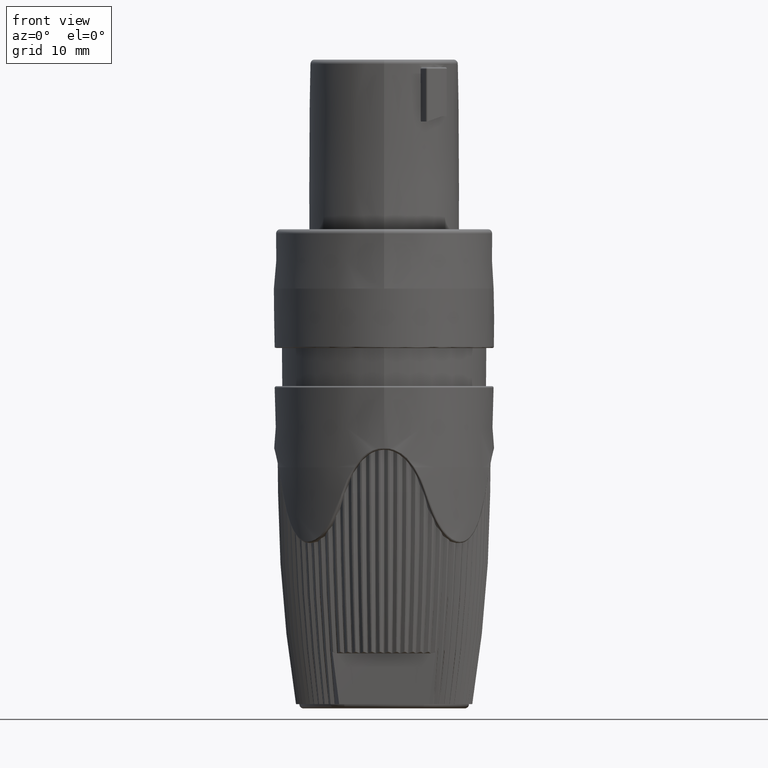
[diagram: clean part render]
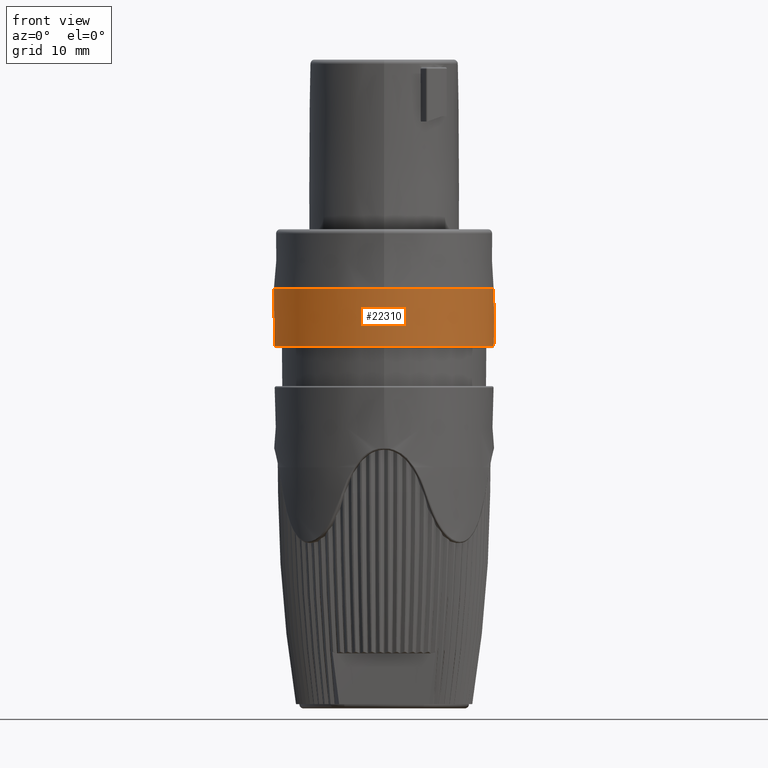
[diagram: same view with one face highlighted and labeled with its STEP entity id]
A machine part, front view. The second image highlights one B-rep face of the part: STEP entity #22310.
In plain terms, the highlighted conical surface has half-angle 0.5 deg.
Its self-contained STEP definition (entity closure, byte-faithful):
#2877=DIRECTION('',(5.890180959891E-5,8.863019207377E-3,9.999607209391E-1));
#2878=VECTOR('',#2877,6.802008814904E0);
#2879=CARTESIAN_POINT('',(-2.184397324232E0,1.275494517034E1,
-3.017416383860E-1));
#2880=LINE('',#2879,#2878);
#2881=CARTESIAN_POINT('',(-2.184397324232E0,1.275494517034E1,
-3.017416383860E-1));
#2932=CARTESIAN_POINT('',(2.184397324149E0,1.275494517034E1,
-3.017416400057E-1));
#2933=CARTESIAN_POINT('',(2.361120586479E0,1.272467532525E1,
-3.022361742442E-1));
#2934=CARTESIAN_POINT('',(2.713297724118E0,1.265679076673E1,
-3.032333979465E-1));
#2935=CARTESIAN_POINT('',(3.236835366282E0,1.253311131966E1,
-3.047541689310E-1));
#2936=CARTESIAN_POINT('',(3.754764084303E0,1.238779125192E1,
-3.063000281980E-1));
#2937=CARTESIAN_POINT('',(4.266178625537E0,1.222108752161E1,
-3.078705846440E-1));
#2938=CARTESIAN_POINT('',(4.770208128681E0,1.203328761030E1,
-3.094650107257E-1));
#2939=CARTESIAN_POINT('',(5.265994987131E0,1.182471255214E1,
-3.110819326993E-1));
#2940=CARTESIAN_POINT('',(5.752687923352E0,1.159572086238E1,
-3.127193629832E-1));
#2941=CARTESIAN_POINT('',(6.229448754306E0,1.134670680403E1,
-3.143746931353E-1));
#2942=CARTESIAN_POINT('',(6.695452524370E0,1.107810115380E1,
-3.160446871893E-1));
#2943=CARTESIAN_POINT('',(7.149895664790E0,1.079036714513E1,
-3.177255305542E-1));
#2944=CARTESIAN_POINT('',(7.591996905365E0,1.048399901137E1,
-3.194128857157E-1));
#2945=CARTESIAN_POINT('',(8.020993424832E0,1.015952447223E1,
-3.211019587544E-1));
#2946=CARTESIAN_POINT('',(8.436143935300E0,9.817503253689E0,
-3.227876189486E-1));
#2947=CARTESIAN_POINT('',(8.836731592496E0,9.458524899125E0,
-3.244645422305E-1));
#2948=CARTESIAN_POINT('',(9.222064495123E0,9.083208251675E0,
-3.261273600140E-1));
#2949=CARTESIAN_POINT('',(9.591476715957E0,8.692200624804E0,
-3.277708142464E-1));
#2950=CARTESIAN_POINT('',(9.944329664184E0,8.286176557725E0,
-3.293899073556E-1));
#2951=CARTESIAN_POINT('',(1.028001326954E1,7.865836589265E0,
-3.309800346863E-1));
#2952=CARTESIAN_POINT('',(1.059794700517E1,7.431906110924E0,
-3.325370911960E-1));
#2953=CARTESIAN_POINT('',(1.089758097490E1,6.985134029702E0,
-3.340575482263E-1));
#2954=CARTESIAN_POINT('',(1.117839687537E1,6.526291449677E0,
-3.355384976396E-1));
#2955=CARTESIAN_POINT('',(1.143990886475E1,6.056170378815E0,
-3.369776646176E-1));
#2956=CARTESIAN_POINT('',(1.168166439687E1,5.575582382120E0,
-3.383733931254E-1));
#2957=CARTESIAN_POINT('',(1.190324500324E1,5.085357203617E0,
-3.397246092258E-1));
#2958=CARTESIAN_POINT('',(1.210426704590E1,4.586341291316E0,
-3.410307683817E-1));
#2959=CARTESIAN_POINT('',(1.228438237481E1,4.079396358536E0,
-3.422917922549E-1));
#2960=CARTESIAN_POINT('',(1.244327893572E1,3.565397902901E0,
-3.435080005091E-1));
#2961=CARTESIAN_POINT('',(1.258068131470E1,3.045233709964E0,
-3.446800418656E-1));
#2962=CARTESIAN_POINT('',(1.269635122468E1,2.519802328112E0,
-3.458088276999E-1));
#2963=CARTESIAN_POINT('',(1.279008792956E1,1.990011525807E0,
-3.468954703980E-1));
#2964=CARTESIAN_POINT('',(1.286172860757E1,1.456776712807E0,
-3.479412278412E-1));
#2965=CARTESIAN_POINT('',(1.291114864458E1,9.210193718368E-1,
-3.489474545588E-1));
#2966=CARTESIAN_POINT('',(1.293826186559E1,3.836654707419E-1,
-3.499155596890E-1));
#2967=CARTESIAN_POINT('',(1.294302070120E1,-1.543561392650E-1,
-3.508469714499E-1));
#2968=CARTESIAN_POINT('',(1.292541628757E1,-6.921153328300E-1,
-3.517431075750E-1));
#2969=CARTESIAN_POINT('',(1.288547849894E1,-1.228682330332E0,
-3.526053510638E-1));
#2970=CARTESIAN_POINT('',(1.282327591128E1,-1.763129318859E0,
-3.534350305344E-1));
#2971=CARTESIAN_POINT('',(1.273891569660E1,-2.294532075118E0,
-3.542334044795E-1));
#2972=CARTESIAN_POINT('',(1.263254344672E1,-2.821971586278E0,
-3.550016487820E-1));
#2973=CARTESIAN_POINT('',(1.250434292761E1,-3.344535659992E0,
-3.557408468994E-1));
#2974=CARTESIAN_POINT('',(1.235453576254E1,-3.861320529338E0,
-3.564519822250E-1));
#2975=CARTESIAN_POINT('',(1.218338104643E1,-4.371432438334E0,
-3.571359321988E-1));
#2976=CARTESIAN_POINT('',(1.199117489226E1,-4.873989208961E0,
-3.577934638466E-1));
#2977=CARTESIAN_POINT('',(1.177824990433E1,-5.368121799585E0,
-3.584252305181E-1));
#2978=CARTESIAN_POINT('',(1.154497459222E1,-5.852975816583E0,
-3.590317696206E-1));
#2979=CARTESIAN_POINT('',(1.129175273069E1,-6.327712985633E0,
-3.596135012948E-1));
#2980=CARTESIAN_POINT('',(1.101902264003E1,-6.791512631111E0,
-3.601707280939E-1));
#2981=CARTESIAN_POINT('',(1.072725640102E1,-7.243573119196E0,
-3.607036357067E-1));
#2982=CARTESIAN_POINT('',(1.041695902019E1,-7.683113245185E0,
-3.612122948713E-1));
#2983=CARTESIAN_POINT('',(1.008866753261E1,-8.109373590684E0,
-3.616966647624E-1));
#2984=CARTESIAN_POINT('',(9.742950054944E0,-8.521617831255E0,
-3.621565981488E-1));
#2985=CARTESIAN_POINT('',(9.380404788759E0,-8.919133999239E0,
-3.625918487093E-1));
#2986=CARTESIAN_POINT('',(9.001658975948E0,-9.301235702218E0,
-3.630020809251E-1));
#2987=CARTESIAN_POINT('',(8.607367785260E0,-9.667263313872E0,
-3.633868830005E-1));
#2988=CARTESIAN_POINT('',(8.198213197603E0,-1.001658507688E1,
-3.637457831447E-1));
#2989=CARTESIAN_POINT('',(7.774902744247E0,-1.034859823945E1,
-3.640782696373E-1));
#2990=CARTESIAN_POINT('',(7.338168492249E0,-1.066272992061E1,
-3.643838145196E-1));
#2991=CARTESIAN_POINT('',(6.888765302786E0,-1.095843845005E1,
-3.646619015222E-1));
#2992=CARTESIAN_POINT('',(6.427470398033E0,-1.123521358325E1,
-3.649120561868E-1));
#2993=CARTESIAN_POINT('',(5.955081580313E0,-1.149257820010E1,
-3.651338800198E-1));
#2994=CARTESIAN_POINT('',(5.472409895170E0,-1.173009060916E1,
-3.653270853969E-1));
#2995=CARTESIAN_POINT('',(4.980314728578E0,-1.194733152674E1,
-3.654915193449E-1));
#2996=CARTESIAN_POINT('',(4.479563289562E0,-1.214395989278E1,
-3.656272345776E-1));
#2997=CARTESIAN_POINT('',(3.971074924708E0,-1.231960983716E1,
-3.657345312108E-1));
#2998=CARTESIAN_POINT('',(3.455716252973E0,-1.247398234054E1,
-3.658138718859E-1));
#2999=CARTESIAN_POINT('',(2.934378341714E0,-1.260680867652E1,
-3.658658089188E-1));
#3000=CARTESIAN_POINT('',(2.407962959374E0,-1.271785804013E1,
-3.658909520787E-1));
#3001=CARTESIAN_POINT('',(1.877379117659E0,-1.280693755546E1,
-3.658899339173E-1));
#3002=CARTESIAN_POINT('',(1.343544180484E0,-1.287389216970E1,
-3.658633814172E-1));
#3003=CARTESIAN_POINT('',(8.073807895793E-1,-1.291860522379E1,
-3.658118927964E-1));
#3004=CARTESIAN_POINT('',(2.698159276981E-1,-1.294099854626E1,
-3.657360190535E-1));
#3005=CARTESIAN_POINT('',(-2.682209525022E-1,-1.294103264844E1,
-3.656362497839E-1));
#3006=CARTESIAN_POINT('',(-8.057994479258E-1,-1.291870679381E1,
-3.655130027021E-1));
#3007=CARTESIAN_POINT('',(-1.341989863785E0,-1.287405901757E1,
-3.653666163176E-1));
#3008=CARTESIAN_POINT('',(-1.875864827210E0,-1.280716607160E1,
-3.651973452850E-1));
#3009=CARTESIAN_POINT('',(-2.406500916620E0,-1.271814330094E1,
-3.650053580232E-1));
#3010=CARTESIAN_POINT('',(-2.932980280955E0,-1.260714444967E1,
-3.647907362896E-1));
#3011=CARTESIAN_POINT('',(-3.454392252455E0,-1.247436139664E1,
-3.645534765042E-1));
#3012=CARTESIAN_POINT('',(-3.969834946763E0,-1.232002382115E1,
-3.642934927038E-1));
#3013=CARTESIAN_POINT('',(-4.478416850844E0,-1.214439879809E1,
-3.640106211087E-1));
#3014=CARTESIAN_POINT('',(-4.979258383666E0,-1.194779032680E1,
-3.637046263788E-1));
#3015=CARTESIAN_POINT('',(-5.471493436532E0,-1.173053879294E1,
-3.633752097183E-1));
#3016=CARTESIAN_POINT('',(-5.954270891194E0,-1.149302036334E1,
-3.630220190565E-1));
#3017=CARTESIAN_POINT('',(-6.426756110592E0,-1.123564631415E1,
-3.626446616130E-1));
#3018=CARTESIAN_POINT('',(-6.888132380869E0,-1.095886230804E1,
-3.622427192215E-1));
#3019=CARTESIAN_POINT('',(-7.337602362486E0,-1.066314757964E1,
-3.618157667207E-1));
#3020=CARTESIAN_POINT('',(-7.774389376870E0,-1.034901415998E1,
-3.613633939835E-1));
#3021=CARTESIAN_POINT('',(-8.197738997611E0,-1.001700577168E1,
-3.608852313529E-1));
#3022=CARTESIAN_POINT('',(-8.606919701305E0,-9.667697419471E0,
-3.603809801012E-1));
#3023=CARTESIAN_POINT('',(-9.001225601995E0,-9.301693105077E0,
-3.598504443508E-1));
#3024=CARTESIAN_POINT('',(-9.379974765446E0,-8.919627303475E0,
-3.592935714627E-1));
#3025=CARTESIAN_POINT('',(-9.742514317201E0,-8.522160825310E0,
-3.587104894528E-1));
#3026=CARTESIAN_POINT('',(-1.008822282478E1,-8.109975089626E0,
-3.581015346412E-1));
#3027=CARTESIAN_POINT('',(-1.041647864459E1,-7.683817237320E0,
-3.574673860718E-1));
#3028=CARTESIAN_POINT('',(-1.072676040853E1,-7.244366368272E0,
-3.568091012042E-1));
#3029=CARTESIAN_POINT('',(-1.101851669647E1,-6.792398462439E0,
-3.561278591982E-1));
#3030=CARTESIAN_POINT('',(-1.129124574856E1,-6.328690176248E0,
-3.554248021560E-1));
#3031=CARTESIAN_POINT('',(-1.154447521743E1,-5.854042035730E0,
-3.547010304446E-1));
#3032=CARTESIAN_POINT('',(-1.177776653217E1,-5.369273942622E0,
-3.539575700890E-1));
#3033=CARTESIAN_POINT('',(-1.199071580129E1,-4.875222746879E0,
-3.531953469828E-1));
#3034=CARTESIAN_POINT('',(-1.218295408341E1,-4.372741829551E0,
-3.524151706261E-1));
#3035=CARTESIAN_POINT('',(-1.235414828603E1,-3.862699094404E0,
-3.516177207232E-1));
#3036=CARTESIAN_POINT('',(-1.250400165436E1,-3.345975688265E0,
-3.508035397420E-1));
#3037=CARTESIAN_POINT('',(-1.263225433143E1,-2.823464405130E0,
-3.499730290383E-1));
#3038=CARTESIAN_POINT('',(-1.273868380858E1,-2.296068181262E0,
-3.491264484234E-1));
#3039=CARTESIAN_POINT('',(-1.282310533094E1,-1.764698524478E0,
-3.482639182176E-1));
#3040=CARTESIAN_POINT('',(-1.288537223294E1,-1.230273939874E0,
-3.473854232592E-1));
#3041=CARTESIAN_POINT('',(-1.292537620989E1,-6.937183330723E-1,
-3.464908183368E-1));
#3042=CARTESIAN_POINT('',(-1.294304752168E1,-1.559594028801E-1,
-3.455798346479E-1));
#3043=CARTESIAN_POINT('',(-1.293835512845E1,3.820729797156E-1,
-3.446520870173E-1));
#3044=CARTESIAN_POINT('',(-1.291130675644E1,9.194483973603E-1,
-3.437070817054E-1));
#3045=CARTESIAN_POINT('',(-1.286194889373E1,1.455237517140E0,
-3.427442247401E-1));
#3046=CARTESIAN_POINT('',(-1.279036671511E1,1.988513721526E0,
-3.417628308093E-1));
#3047=CARTESIAN_POINT('',(-1.269668393606E1,2.518354734233E0,
-3.407621328126E-1));
#3048=CARTESIAN_POINT('',(-1.258106259748E1,3.043844234484E0,
-3.397412922896E-1));
#3049=CARTESIAN_POINT('',(-1.244370277669E1,3.564073476194E0,
-3.386994109235E-1));
#3050=CARTESIAN_POINT('',(-1.228484223439E1,4.078142865094E0,
-3.376355435390E-1));
#3051=CARTESIAN_POINT('',(-1.210475600289E1,4.585163507024E0,
-3.365487129547E-1));
#3052=CARTESIAN_POINT('',(-1.190375588677E1,5.084258799620E0,
-3.354379269415E-1));
#3053=CARTESIAN_POINT('',(-1.168218990836E1,5.574565953604E0,
-3.343021979928E-1));
#3054=CARTESIAN_POINT('',(-1.144044168575E1,6.055237499016E0,
-3.331405662504E-1));
#3055=CARTESIAN_POINT('',(-1.117892974913E1,6.525442756625E0,
-3.319521260959E-1));
#3056=CARTESIAN_POINT('',(-1.089810680131E1,6.984369269583E0,
-3.307360568206E-1));
#3057=CARTESIAN_POINT('',(-1.059845892063E1,7.431224202128E0,
-3.294916576373E-1));
#3058=CARTESIAN_POINT('',(-1.028050470500E1,7.865235706780E0,
-3.282183871322E-1));
#3059=CARTESIAN_POINT('',(-9.944794357667E0,8.285654256669E0,
-3.269159069442E-1));
#3060=CARTESIAN_POINT('',(-9.591908727791E0,8.691753926646E0,
-3.255841291295E-1));
#3061=CARTESIAN_POINT('',(-9.222458303155E0,9.082833631480E0,
-3.242232660481E-1));
#3062=CARTESIAN_POINT('',(-8.837082158065E0,9.458218320226E0,
-3.228338809961E-1));
#3063=CARTESIAN_POINT('',(-8.436446835274E0,9.817260143634E0,
-3.214169369899E-1));
#3064=CARTESIAN_POINT('',(-8.021245236896E0,1.015933952933E1,
-3.199738406502E-1));
#3065=CARTESIAN_POINT('',(-7.592195353730E0,1.048386631192E1,
-3.185064766132E-1));
#3066=CARTESIAN_POINT('',(-7.150038958023E0,1.079028077960E1,
-3.170172284370E-1));
#3067=CARTESIAN_POINT('',(-6.695540482028E0,1.107805449229E1,
-3.155089822048E-1));
#3068=CARTESIAN_POINT('',(-6.229486406724E0,1.134669085540E1,
-3.139851096428E-1));
#3069=CARTESIAN_POINT('',(-5.752681406686E0,1.159572745476E1,
-3.124494156884E-1));
#3070=CARTESIAN_POINT('',(-5.265947277508E0,1.182473608E1,-3.109060697523E-1));
#3071=CARTESIAN_POINT('',(-4.770128659155E0,1.203332049305E1,
-3.093595329779E-1));
#3072=CARTESIAN_POINT('',(-4.266082609131E0,1.222112158796E1,
-3.078144139521E-1));
#3073=CARTESIAN_POINT('',(-3.754677815409E0,1.238781730869E1,
-3.062753416391E-1));
#3074=CARTESIAN_POINT('',(-3.236775557937E0,1.253312632808E1,
-3.047467817974E-1));
#3075=CARTESIAN_POINT('',(-2.713273271396E0,1.265679554772E1,
-3.032330389800E-1));
#3076=CARTESIAN_POINT('',(-2.361112910780E0,1.272467663858E1,
-3.022363080848E-1));
#3077=CARTESIAN_POINT('',(-2.184397324232E0,1.275494517034E1,
-3.017416383860E-1));
#3231=CARTESIAN_POINT('',(-8.654315666242E0,9.680184972360E0,4.75E0));
#3232=CARTESIAN_POINT('',(-8.620512661197E0,9.712631896844E0,4.940179266979E0));
#3233=CARTESIAN_POINT('',(-8.563772355204E0,9.767184644776E0,5.323424585673E0));
#3234=CARTESIAN_POINT('',(-8.511619046906E0,9.819329049722E0,5.909914042688E0));
#3235=CARTESIAN_POINT('',(-8.5E0,9.833881884846E0,6.302677222299E0));
#3236=CARTESIAN_POINT('',(-8.5E0,9.836157786453E0,6.5E0));
#3238=CARTESIAN_POINT('',(-1.E1,8.306623862918E0,6.5E0));
#3239=CARTESIAN_POINT('',(-9.893405682447E0,8.432185004258E0,6.297671678792E0));
#3240=CARTESIAN_POINT('',(-9.655607212390E0,8.703643716566E0,5.896758765719E0));
#3241=CARTESIAN_POINT('',(-9.200479613860E0,9.178182746390E0,5.295548871996E0));
#3242=CARTESIAN_POINT('',(-8.847014680031E0,9.509986382827E0,4.927594200417E0));
#3243=CARTESIAN_POINT('',(-8.654315666242E0,9.680184972360E0,4.75E0));
#3245=CARTESIAN_POINT('',(8.725022686044E0,9.607664061076E0,4.E0));
#3246=CARTESIAN_POINT('',(8.982160444207E0,9.376960532581E0,4.238487018043E0));
#3247=CARTESIAN_POINT('',(9.467726537338E0,8.905436706873E0,4.740614529346E0));
#3248=CARTESIAN_POINT('',(1.012821848634E1,8.155817680364E0,5.599072249894E0));
#3249=CARTESIAN_POINT('',(1.048635092280E1,7.684138782010E0,6.192697454097E0));
#3250=CARTESIAN_POINT('',(1.065E1,7.455031857745E0,6.5E0));
#3252=CARTESIAN_POINT('',(8.5E0,9.836157786453E0,6.5E0));
#3253=CARTESIAN_POINT('',(8.5E0,9.832884374356E0,6.216192138721E0));
#3254=CARTESIAN_POINT('',(8.517144569316E0,9.811606656387E0,5.652534560584E0));
#3255=CARTESIAN_POINT('',(8.593654193188E0,9.735142404142E0,4.813555473984E0));
#3256=CARTESIAN_POINT('',(8.676149753374E0,9.655221600819E0,4.269289415518E0));
#3257=CARTESIAN_POINT('',(8.725022686044E0,9.607664061076E0,4.E0));
#3267=CARTESIAN_POINT('',(0.E0,0.E0,6.5E0));
#3268=DIRECTION('',(0.E0,0.E0,1.E0));
#3269=DIRECTION('',(-7.692307692308E-1,6.389710663783E-1,0.E0));
#3270=AXIS2_PLACEMENT_3D('',#3267,#3268,#3269);
#3277=CARTESIAN_POINT('',(-1.E1,8.306623862918E0,6.5E0));
#3279=CARTESIAN_POINT('',(-8.5E0,9.836157786453E0,6.5E0));
#3286=CARTESIAN_POINT('',(0.E0,0.E0,6.5E0));
#3287=DIRECTION('',(0.E0,0.E0,1.E0));
#3288=DIRECTION('',(-1.679997441234E-1,9.857870388550E-1,0.E0));
#3289=AXIS2_PLACEMENT_3D('',#3286,#3287,#3288);
#3324=DIRECTION('',(5.890179732406E-5,-8.863019205256E-3,-9.999607209392E-1));
#3325=VECTOR('',#3324,6.802008816524E0);
#3326=CARTESIAN_POINT('',(2.183996673604E0,1.281523150512E1,6.5E0));
#3327=LINE('',#3326,#3325);
#3512=CARTESIAN_POINT('',(0.E0,0.E0,6.5E0));
#3513=DIRECTION('',(0.E0,0.E0,-1.E0));
#3514=DIRECTION('',(1.679997441234E-1,9.857870388550E-1,0.E0));
#3515=AXIS2_PLACEMENT_3D('',#3512,#3513,#3514);
#3522=CARTESIAN_POINT('',(8.5E0,9.836157786453E0,6.5E0));
#3524=CARTESIAN_POINT('',(1.065E1,7.455031857745E0,6.5E0));
#3531=CARTESIAN_POINT('',(0.E0,0.E0,6.5E0));
#3532=DIRECTION('',(0.E0,0.E0,-1.E0));
#3533=DIRECTION('',(8.192307692308E-1,5.734639890573E-1,0.E0));
#3534=AXIS2_PLACEMENT_3D('',#3531,#3532,#3533);
#16089=CARTESIAN_POINT('',(0.E0,-1.3E1,6.5E0));
#16091=VERTEX_POINT('',#16089);
#16095=VERTEX_POINT('',#3524);
#16099=VERTEX_POINT('',#3522);
#16101=VERTEX_POINT('',#3257);
#16104=VERTEX_POINT('',#3277);
#16107=VERTEX_POINT('',#3279);
#16109=VERTEX_POINT('',#3243);
#16119=CARTESIAN_POINT('',(2.183996673604E0,1.281523150511E1,6.5E0));
#16120=VERTEX_POINT('',#16119);
#16121=CARTESIAN_POINT('',(-2.183996673604E0,1.281523150511E1,6.5E0));
#16122=VERTEX_POINT('',#16121);
#16139=VERTEX_POINT('',#2881);
#16141=VERTEX_POINT('',#2932);
#22283=CARTESIAN_POINT('',(0.E0,0.E0,3.067054888294E0));
#22284=DIRECTION('',(0.E0,0.E0,1.E0));
#22285=DIRECTION('',(0.E0,1.E0,0.E0));
#22286=AXIS2_PLACEMENT_3D('',#22283,#22284,#22285);
#22287=CONICAL_SURFACE('',#22286,1.297004114188E1,5.E-1);
#22288=ORIENTED_EDGE('',*,*,#22273,.T.);
#22289=ORIENTED_EDGE('',*,*,#21584,.T.);
#22291=ORIENTED_EDGE('',*,*,#22290,.T.);
#22293=ORIENTED_EDGE('',*,*,#22292,.F.);
#22295=ORIENTED_EDGE('',*,*,#22294,.F.);
#22297=ORIENTED_EDGE('',*,*,#22296,.T.);
#22299=ORIENTED_EDGE('',*,*,#22298,.F.);
#22301=ORIENTED_EDGE('',*,*,#22300,.F.);
#22303=ORIENTED_EDGE('',*,*,#22302,.F.);
#22305=ORIENTED_EDGE('',*,*,#22304,.F.);
#22307=ORIENTED_EDGE('',*,*,#22306,.T.);
#22308=EDGE_LOOP('',(#22288,#22289,#22291,#22293,#22295,#22297,#22299,#22301,
#22303,#22305,#22307));
#22309=FACE_OUTER_BOUND('',#22308,.F.);
#22310=ADVANCED_FACE('',(#22309),#22287,.T.);
#3078=B_SPLINE_CURVE_WITH_KNOTS('',3,(#2932,#2933,#2934,#2935,#2936,#2937,#2938,
#2939,#2940,#2941,#2942,#2943,#2944,#2945,#2946,#2947,#2948,#2949,#2950,#2951,
#2952,#2953,#2954,#2955,#2956,#2957,#2958,#2959,#2960,#2961,#2962,#2963,#2964,
#2965,#2966,#2967,#2968,#2969,#2970,#2971,#2972,#2973,#2974,#2975,#2976,#2977,
#2978,#2979,#2980,#2981,#2982,#2983,#2984,#2985,#2986,#2987,#2988,#2989,#2990,
#2991,#2992,#2993,#2994,#2995,#2996,#2997,#2998,#2999,#3000,#3001,#3002,#3003,
#3004,#3005,#3006,#3007,#3008,#3009,#3010,#3011,#3012,#3013,#3014,#3015,#3016,
#3017,#3018,#3019,#3020,#3021,#3022,#3023,#3024,#3025,#3026,#3027,#3028,#3029,
#3030,#3031,#3032,#3033,#3034,#3035,#3036,#3037,#3038,#3039,#3040,#3041,#3042,
#3043,#3044,#3045,#3046,#3047,#3048,#3049,#3050,#3051,#3052,#3053,#3054,#3055,
#3056,#3057,#3058,#3059,#3060,#3061,#3062,#3063,#3064,#3065,#3066,#3067,#3068,
#3069,#3070,#3071,#3072,#3073,#3074,#3075,#3076,#3077),.UNSPECIFIED.,.F.,.F.,(4,
1,1,1,1,1,1,1,1,1,1,1,1,1,1,1,1,1,1,1,1,1,1,1,1,1,1,1,1,1,1,1,1,1,1,1,1,1,1,1,1,
1,1,1,1,1,1,1,1,1,1,1,1,1,1,1,1,1,1,1,1,1,1,1,1,1,1,1,1,1,1,1,1,1,1,1,1,1,1,1,1,
1,1,1,1,1,1,1,1,1,1,1,1,1,1,1,1,1,1,1,1,1,1,1,1,1,1,1,1,1,1,1,1,1,1,1,1,1,1,1,1,
1,1,1,1,1,1,1,1,1,1,1,1,1,1,1,1,1,1,1,1,1,1,4),(0.E0,6.993006993007E-3,
1.398601398601E-2,2.097902097902E-2,2.797202797203E-2,3.496503496503E-2,
4.195804195804E-2,4.895104895105E-2,5.594405594406E-2,6.293706293706E-2,
6.993006993007E-2,7.692307692308E-2,8.391608391608E-2,9.090909090909E-2,
9.790209790210E-2,1.048951048951E-1,1.118881118881E-1,1.188811188811E-1,
1.258741258741E-1,1.328671328671E-1,1.398601398601E-1,1.468531468531E-1,
1.538461538462E-1,1.608391608392E-1,1.678321678322E-1,1.748251748252E-1,
1.818181818182E-1,1.888111888112E-1,1.958041958042E-1,2.027972027972E-1,
2.097902097902E-1,2.167832167832E-1,2.237762237762E-1,2.307692307692E-1,
2.377622377622E-1,2.447552447552E-1,2.517482517483E-1,2.587412587413E-1,
2.657342657343E-1,2.727272727273E-1,2.797202797203E-1,2.867132867133E-1,
2.937062937063E-1,3.006993006993E-1,3.076923076923E-1,3.146853146853E-1,
3.216783216783E-1,3.286713286713E-1,3.356643356643E-1,3.426573426573E-1,
3.496503496503E-1,3.566433566434E-1,3.636363636364E-1,3.706293706294E-1,
3.776223776224E-1,3.846153846154E-1,3.916083916084E-1,3.986013986014E-1,
4.055944055944E-1,4.125874125874E-1,4.195804195804E-1,4.265734265734E-1,
4.335664335664E-1,4.405594405594E-1,4.475524475524E-1,4.545454545455E-1,
4.615384615385E-1,4.685314685315E-1,4.755244755245E-1,4.825174825175E-1,
4.895104895105E-1,4.965034965035E-1,5.034965034965E-1,5.104895104895E-1,
5.174825174825E-1,5.244755244755E-1,5.314685314685E-1,5.384615384615E-1,
5.454545454545E-1,5.524475524476E-1,5.594405594406E-1,5.664335664336E-1,
5.734265734266E-1,5.804195804196E-1,5.874125874126E-1,5.944055944056E-1,
6.013986013986E-1,6.083916083916E-1,6.153846153846E-1,6.223776223776E-1,
6.293706293706E-1,6.363636363636E-1,6.433566433566E-1,6.503496503497E-1,
6.573426573427E-1,6.643356643357E-1,6.713286713287E-1,6.783216783217E-1,
6.853146853147E-1,6.923076923077E-1,6.993006993007E-1,7.062937062937E-1,
7.132867132867E-1,7.202797202797E-1,7.272727272727E-1,7.342657342657E-1,
7.412587412587E-1,7.482517482517E-1,7.552447552448E-1,7.622377622378E-1,
7.692307692308E-1,7.762237762238E-1,7.832167832168E-1,7.902097902098E-1,
7.972027972028E-1,8.041958041958E-1,8.111888111888E-1,8.181818181818E-1,
8.251748251748E-1,8.321678321678E-1,8.391608391608E-1,8.461538461538E-1,
8.531468531469E-1,8.601398601399E-1,8.671328671329E-1,8.741258741259E-1,
8.811188811189E-1,8.881118881119E-1,8.951048951049E-1,9.020979020979E-1,
9.090909090909E-1,9.160839160839E-1,9.230769230769E-1,9.300699300699E-1,
9.370629370629E-1,9.440559440559E-1,9.510489510490E-1,9.580419580420E-1,
9.650349650350E-1,9.720279720280E-1,9.790209790210E-1,9.860139860140E-1,
9.930069930070E-1,1.E0),.UNSPECIFIED.);
#3237=B_SPLINE_CURVE_WITH_KNOTS('',3,(#3231,#3232,#3233,#3234,#3235,#3236),
.UNSPECIFIED.,.F.,.F.,(4,1,1,4),(0.E0,3.333333333333E-1,6.666666666667E-1,1.E0),
.UNSPECIFIED.);
#3244=B_SPLINE_CURVE_WITH_KNOTS('',3,(#3238,#3239,#3240,#3241,#3242,#3243),
.UNSPECIFIED.,.F.,.F.,(4,1,1,4),(0.E0,3.333333333333E-1,6.666666666667E-1,1.E0),
.UNSPECIFIED.);
#3251=B_SPLINE_CURVE_WITH_KNOTS('',3,(#3245,#3246,#3247,#3248,#3249,#3250),
.UNSPECIFIED.,.F.,.F.,(4,1,1,4),(0.E0,3.333333333333E-1,6.666666666667E-1,1.E0),
.UNSPECIFIED.);
#3258=B_SPLINE_CURVE_WITH_KNOTS('',3,(#3252,#3253,#3254,#3255,#3256,#3257),
.UNSPECIFIED.,.F.,.F.,(4,1,1,4),(0.E0,3.333333333333E-1,6.666666666667E-1,1.E0),
.UNSPECIFIED.);
#3271=CIRCLE('',#3270,1.3E1);
#3290=CIRCLE('',#3289,1.3E1);
#3516=CIRCLE('',#3515,1.3E1);
#3535=CIRCLE('',#3534,1.3E1);
#21584=EDGE_CURVE('',#16139,#16122,#2880,.T.);
#22273=EDGE_CURVE('',#16141,#16139,#3078,.T.);
#22290=EDGE_CURVE('',#16122,#16107,#3290,.T.);
#22292=EDGE_CURVE('',#16109,#16107,#3237,.T.);
#22294=EDGE_CURVE('',#16104,#16109,#3244,.T.);
#22296=EDGE_CURVE('',#16104,#16091,#3271,.T.);
#22298=EDGE_CURVE('',#16095,#16091,#3535,.T.);
#22300=EDGE_CURVE('',#16101,#16095,#3251,.T.);
#22302=EDGE_CURVE('',#16099,#16101,#3258,.T.);
#22304=EDGE_CURVE('',#16120,#16099,#3516,.T.);
#22306=EDGE_CURVE('',#16120,#16141,#3327,.T.);